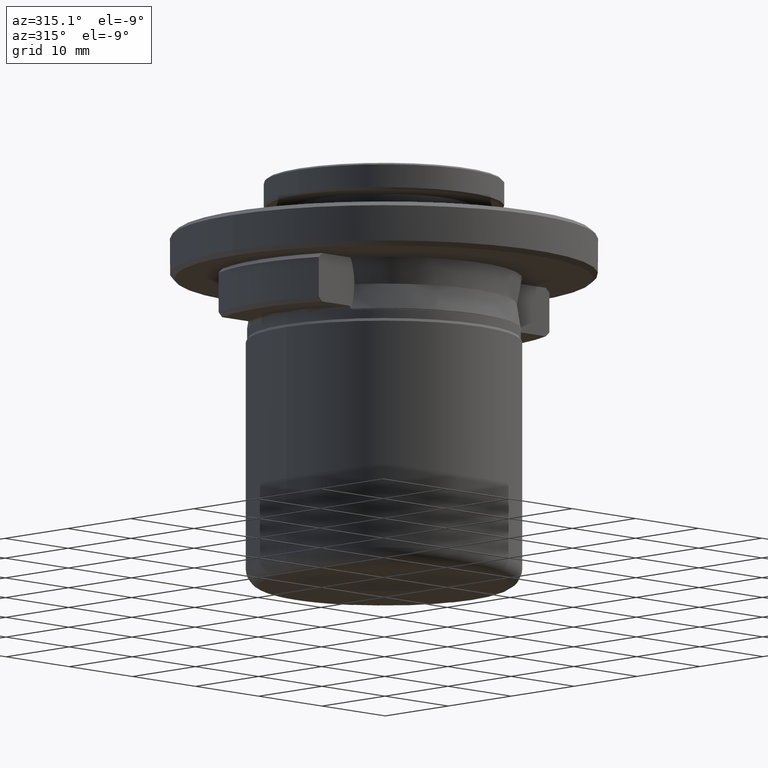
[diagram: clean part render]
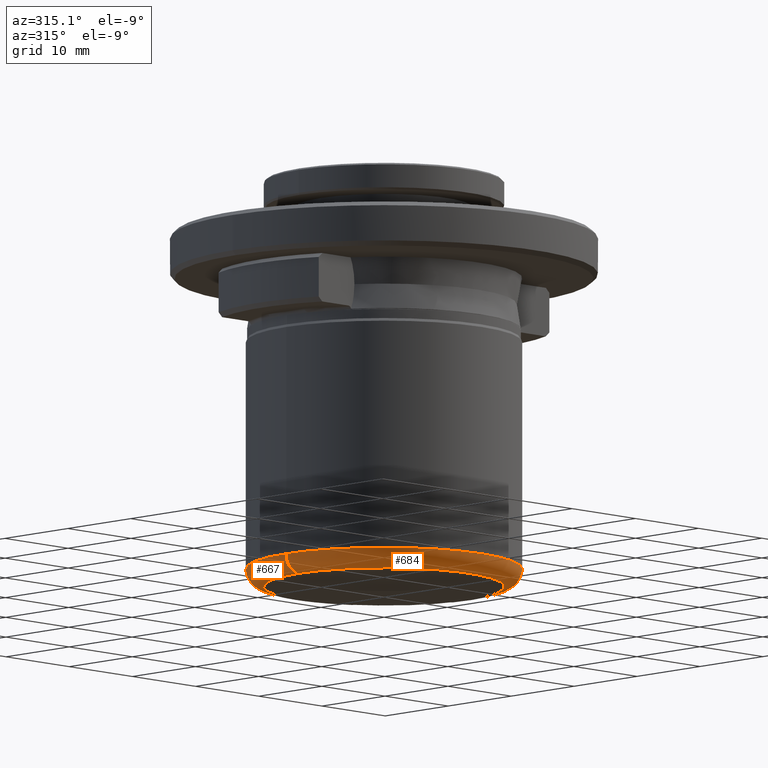
[diagram: same view with one multi-face feature highlighted, each face labeled with its STEP entity id]
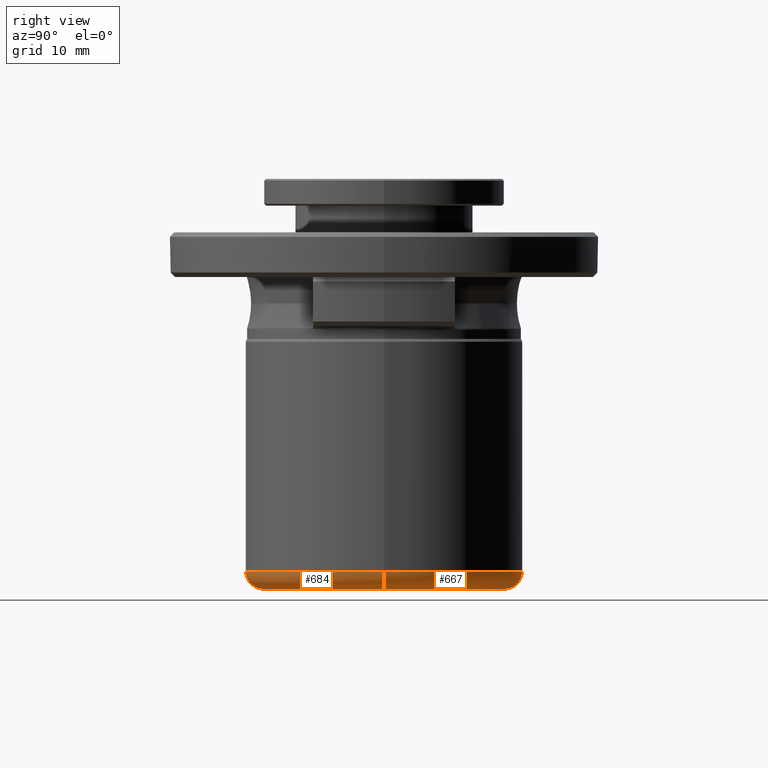
[diagram: same view with one multi-face feature highlighted, each face labeled with its STEP entity id]
A machine part, auxiliary view. The highlighted faces form ONE feature: a constant-radius fillet chain: 2 tangent blend faces with common blend radius 2 mm. The faces share edges in the B-rep.
A second angle (right view) of the same feature is appended — it is thin or edge-on in the first view.
Their STEP definitions:
[1] entity #684 (Torus):
#39 = ORIENTED_EDGE ( 'NONE', *, *, #857, .F. ) ;
#104 = VERTEX_POINT ( 'NONE', #1579 ) ;
#135 = AXIS2_PLACEMENT_3D ( 'NONE', #708, #1768, #866 ) ;
#184 = AXIS2_PLACEMENT_3D ( 'NONE', #617, #1690, #774 ) ;
#197 = VERTEX_POINT ( 'NONE', #280 ) ;
#207 = EDGE_CURVE ( 'NONE', #1463, #917, #213, .T. ) ;
#213 = CIRCLE ( 'NONE', #671, 2.000000000000000000 ) ;
#280 = CARTESIAN_POINT ( 'NONE',  ( 15.50000000000000000, 0.0000000000000000000, -25.56151438499999900 ) ) ;
#285 = CIRCLE ( 'NONE', #348, 15.50000000000000000 ) ;
#289 = DIRECTION ( 'NONE',  ( -1.000000000000000000, 1.224646799147353500E-016, 0.0000000000000000000 ) ) ;
#348 = AXIS2_PLACEMENT_3D ( 'NONE', #1638, #723, #1780 ) ;
#365 = DIRECTION ( 'NONE',  ( 0.0000000000000000000, 0.0000000000000000000, 1.000000000000000000 ) ) ;
#575 = FACE_OUTER_BOUND ( 'NONE', #602, .T. ) ;
#602 = EDGE_LOOP ( 'NONE', ( #1207, #885, #1582, #39 ) ) ;
#611 = CARTESIAN_POINT ( 'NONE',  ( -13.50000000000000000, 1.653273178848926900E-015, -25.56151438499999900 ) ) ;
#617 = CARTESIAN_POINT ( 'NONE',  ( 0.0000000000000000000, 0.0000000000000000000, -27.56151438499999900 ) ) ;
#671 = AXIS2_PLACEMENT_3D ( 'NONE', #611, #1680, #289 ) ;
#684 = ADVANCED_FACE ( 'NONE', ( #575 ), #1739, .T. ) ;
#708 = CARTESIAN_POINT ( 'NONE',  ( 13.50000000000000000, 0.0000000000000000000, -25.56151438499999900 ) ) ;
#723 = DIRECTION ( 'NONE',  ( 0.0000000000000000000, 0.0000000000000000000, 1.000000000000000000 ) ) ;
#733 = CARTESIAN_POINT ( 'NONE',  ( -15.50000000000000000, 1.898202538678397600E-015, -25.56151438499999900 ) ) ;
#774 = DIRECTION ( 'NONE',  ( 1.000000000000000000, 0.0000000000000000000, 0.0000000000000000000 ) ) ;
#821 = EDGE_CURVE ( 'NONE', #104, #197, #1559, .T. ) ;
#857 = EDGE_CURVE ( 'NONE', #917, #197, #285, .T. ) ;
#866 = DIRECTION ( 'NONE',  ( 0.0000000000000000000, 0.0000000000000000000, -1.000000000000000000 ) ) ;
#885 = ORIENTED_EDGE ( 'NONE', *, *, #1588, .F. ) ;
#917 = VERTEX_POINT ( 'NONE', #733 ) ;
#1096 = AXIS2_PLACEMENT_3D ( 'NONE', #1275, #365, #1426 ) ;
#1188 = CARTESIAN_POINT ( 'NONE',  ( -13.50000000000000000, 1.775737858763662000E-015, -27.56151438499999900 ) ) ;
#1207 = ORIENTED_EDGE ( 'NONE', *, *, #207, .F. ) ;
#1275 = CARTESIAN_POINT ( 'NONE',  ( 0.0000000000000000000, 0.0000000000000000000, -25.56151438499999900 ) ) ;
#1426 = DIRECTION ( 'NONE',  ( 1.000000000000000000, 0.0000000000000000000, 0.0000000000000000000 ) ) ;
#1463 = VERTEX_POINT ( 'NONE', #1188 ) ;
#1536 = CIRCLE ( 'NONE', #184, 13.50000000000000000 ) ;
#1559 = CIRCLE ( 'NONE', #135, 2.000000000000001800 ) ;
#1579 = CARTESIAN_POINT ( 'NONE',  ( 13.50000000000000000, 0.0000000000000000000, -27.56151438499999900 ) ) ;
#1582 = ORIENTED_EDGE ( 'NONE', *, *, #821, .T. ) ;
#1588 = EDGE_CURVE ( 'NONE', #104, #1463, #1536, .T. ) ;
#1638 = CARTESIAN_POINT ( 'NONE',  ( 0.0000000000000000000, 0.0000000000000000000, -25.56151438499999900 ) ) ;
#1680 = DIRECTION ( 'NONE',  ( 1.224646799147353200E-016, 1.000000000000000000, -0.0000000000000000000 ) ) ;
#1690 = DIRECTION ( 'NONE',  ( -0.0000000000000000000, -0.0000000000000000000, -1.000000000000000000 ) ) ;
#1739 = TOROIDAL_SURFACE ( 'NONE', #1096, 13.50000000000000000, 2.000000000000000000 ) ;
#1768 = DIRECTION ( 'NONE',  ( 0.0000000000000000000, -1.000000000000000000, 0.0000000000000000000 ) ) ;
#1780 = DIRECTION ( 'NONE',  ( 1.000000000000000000, 0.0000000000000000000, 0.0000000000000000000 ) ) ;
[2] entity #667 (Torus):
#104 = VERTEX_POINT ( 'NONE', #1579 ) ;
#135 = AXIS2_PLACEMENT_3D ( 'NONE', #708, #1768, #866 ) ;
#142 = ORIENTED_EDGE ( 'NONE', *, *, #1502, .F. ) ;
#197 = VERTEX_POINT ( 'NONE', #280 ) ;
#207 = EDGE_CURVE ( 'NONE', #1463, #917, #213, .T. ) ;
#213 = CIRCLE ( 'NONE', #671, 2.000000000000000000 ) ;
#280 = CARTESIAN_POINT ( 'NONE',  ( 15.50000000000000000, 0.0000000000000000000, -25.56151438499999900 ) ) ;
#289 = DIRECTION ( 'NONE',  ( -1.000000000000000000, 1.224646799147353500E-016, 0.0000000000000000000 ) ) ;
#308 = CARTESIAN_POINT ( 'NONE',  ( 0.0000000000000000000, 0.0000000000000000000, -25.56151438499999900 ) ) ;
#360 = DIRECTION ( 'NONE',  ( 1.000000000000000000, 0.0000000000000000000, 0.0000000000000000000 ) ) ;
#453 = DIRECTION ( 'NONE',  ( -0.0000000000000000000, -0.0000000000000000000, -1.000000000000000000 ) ) ;
#462 = DIRECTION ( 'NONE',  ( 1.000000000000000000, 0.0000000000000000000, 0.0000000000000000000 ) ) ;
#611 = CARTESIAN_POINT ( 'NONE',  ( -13.50000000000000000, 1.653273178848926900E-015, -25.56151438499999900 ) ) ;
#667 = ADVANCED_FACE ( 'NONE', ( #1778 ), #1382, .T. ) ;
#671 = AXIS2_PLACEMENT_3D ( 'NONE', #611, #1680, #289 ) ;
#708 = CARTESIAN_POINT ( 'NONE',  ( 13.50000000000000000, 0.0000000000000000000, -25.56151438499999900 ) ) ;
#733 = CARTESIAN_POINT ( 'NONE',  ( -15.50000000000000000, 1.898202538678397600E-015, -25.56151438499999900 ) ) ;
#772 = ORIENTED_EDGE ( 'NONE', *, *, #821, .F. ) ;
#796 = CIRCLE ( 'NONE', #1342, 13.50000000000000000 ) ;
#804 = ORIENTED_EDGE ( 'NONE', *, *, #207, .T. ) ;
#820 = ORIENTED_EDGE ( 'NONE', *, *, #1551, .F. ) ;
#821 = EDGE_CURVE ( 'NONE', #104, #197, #1559, .T. ) ;
#866 = DIRECTION ( 'NONE',  ( 0.0000000000000000000, 0.0000000000000000000, -1.000000000000000000 ) ) ;
#895 = AXIS2_PLACEMENT_3D ( 'NONE', #1271, #963, #360 ) ;
#917 = VERTEX_POINT ( 'NONE', #733 ) ;
#963 = DIRECTION ( 'NONE',  ( 0.0000000000000000000, 0.0000000000000000000, 1.000000000000000000 ) ) ;
#1188 = CARTESIAN_POINT ( 'NONE',  ( -13.50000000000000000, 1.775737858763662000E-015, -27.56151438499999900 ) ) ;
#1271 = CARTESIAN_POINT ( 'NONE',  ( 0.0000000000000000000, 0.0000000000000000000, -25.56151438499999900 ) ) ;
#1342 = AXIS2_PLACEMENT_3D ( 'NONE', #1362, #453, #1522 ) ;
#1362 = CARTESIAN_POINT ( 'NONE',  ( 0.0000000000000000000, 0.0000000000000000000, -27.56151438499999900 ) ) ;
#1371 = DIRECTION ( 'NONE',  ( 0.0000000000000000000, 0.0000000000000000000, 1.000000000000000000 ) ) ;
#1382 = TOROIDAL_SURFACE ( 'NONE', #895, 13.50000000000000000, 2.000000000000000000 ) ;
#1458 = CIRCLE ( 'NONE', #1852, 15.50000000000000000 ) ;
#1463 = VERTEX_POINT ( 'NONE', #1188 ) ;
#1502 = EDGE_CURVE ( 'NONE', #1463, #104, #796, .T. ) ;
#1522 = DIRECTION ( 'NONE',  ( 1.000000000000000000, 0.0000000000000000000, 0.0000000000000000000 ) ) ;
#1551 = EDGE_CURVE ( 'NONE', #197, #917, #1458, .T. ) ;
#1559 = CIRCLE ( 'NONE', #135, 2.000000000000001800 ) ;
#1579 = CARTESIAN_POINT ( 'NONE',  ( 13.50000000000000000, 0.0000000000000000000, -27.56151438499999900 ) ) ;
#1680 = DIRECTION ( 'NONE',  ( 1.224646799147353200E-016, 1.000000000000000000, -0.0000000000000000000 ) ) ;
#1735 = EDGE_LOOP ( 'NONE', ( #142, #804, #820, #772 ) ) ;
#1768 = DIRECTION ( 'NONE',  ( 0.0000000000000000000, -1.000000000000000000, 0.0000000000000000000 ) ) ;
#1778 = FACE_OUTER_BOUND ( 'NONE', #1735, .T. ) ;
#1852 = AXIS2_PLACEMENT_3D ( 'NONE', #308, #1371, #462 ) ;